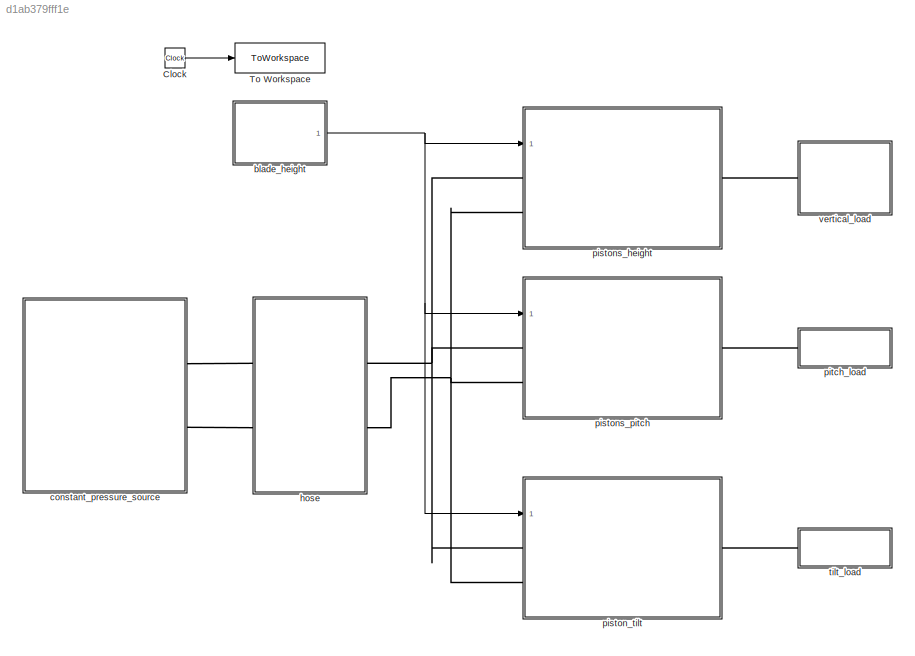
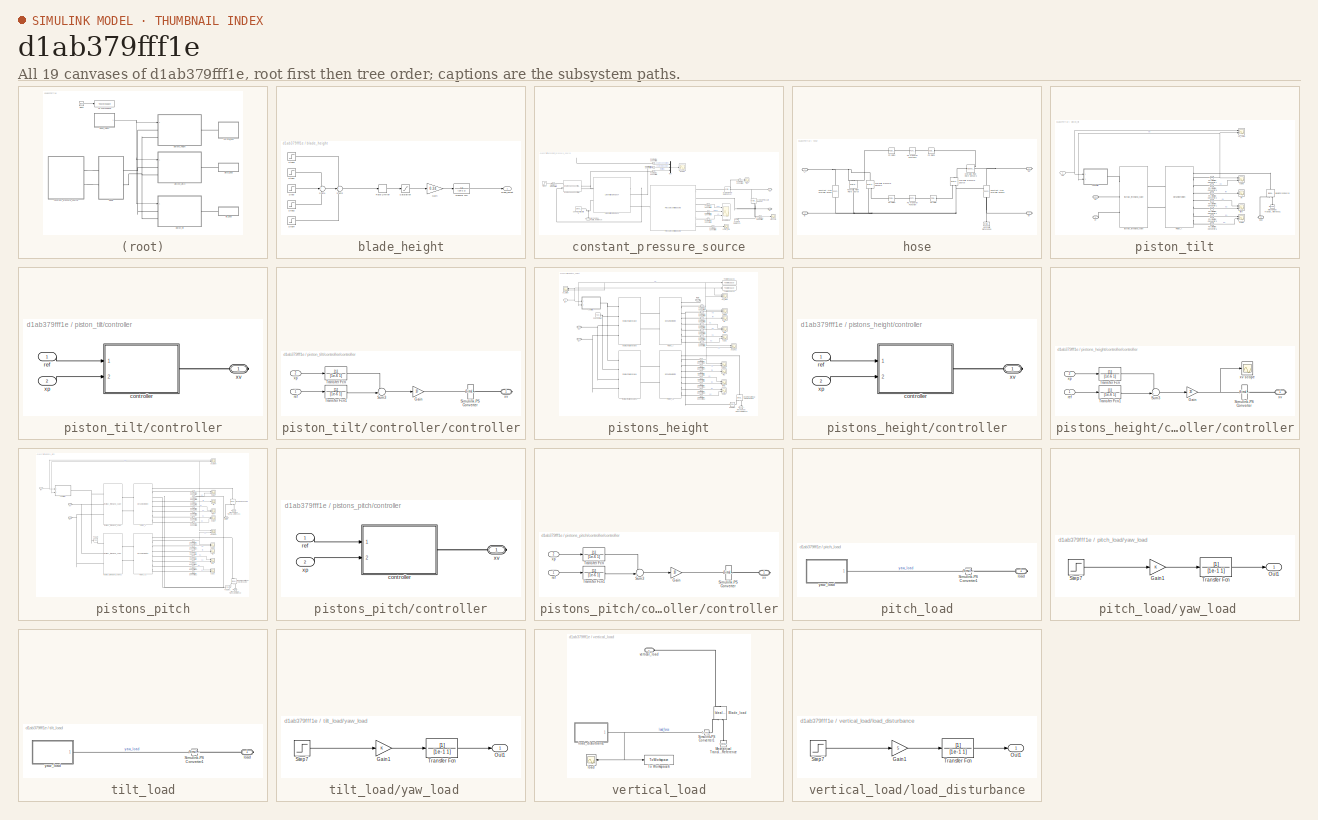
[diagram: thumbnail index - all 19 canvases of the model, root first then tree order]
MODEL slx_d1ab379fff1e
KIND model
CONFIG AbsTol = auto
CONFIG EnableMultiTasking = off
CONFIG FixedStep = auto
CONFIG MaxStep = tsample
CONFIG MinStep = auto
CONFIG RelTol = auto
CONFIG SampleTimeConstraint = Unconstrained
CONFIG Solver = ode23tb
CONFIG SolverName = ode23tb
CONFIG StartTime = 0.0
CONFIG StopTime = simulation_length
BLOCK [Clock] Clock
BLOCK [ToWorkspace] To Workspace
  FixptAsFi = on
  MaxDataPoints = Nsample
  Ports = [1]
  SampleTime = tsample
  VariableName = t
BLOCK [SubSystem] blade_height
  Ports = [0, 1]
  RequestExecContextInheritance = off
BLOCK [Gain] blade_height/Gain
  Gain = 0.24
BLOCK [RateLimiter] blade_height/Rate Limiter
  FallingSlewLimit = -0.2
  RisingSlewLimit = 0.2
  SampleTimeMode = inherited
BLOCK [Saturate] blade_height/Saturation
  LowerLimit = -0.99
  UpperLimit = 0.99
BLOCK [Step] blade_height/Step
  After = 0.5
  SampleTime = 0
  Time = 20
BLOCK [Step] blade_height/Step1
  SampleTime = 0
  Time = 40
BLOCK [Step] blade_height/Step2
  After = 2.5
  SampleTime = 0
  Time = 60
BLOCK [Step] blade_height/Step3
  After = 1.4
  SampleTime = 0
  Time = 80
BLOCK [Step] blade_height/Step4
  After = -0.5
  SampleTime = 0
  Time = 100
BLOCK [Sum] blade_height/Sum1
  Inputs = ++-
  Ports = [3, 1]
BLOCK [Sum] blade_height/Sum2
  Inputs = ++-
  Ports = [3, 1]
BLOCK [TransferFcn] blade_height/Transfer Fcn
  Denominator = [1e-2 1]
BLOCK [Outport] blade_height/blade_height
BLOCK [SubSystem] constant_pressure_source
  Ports = [0, 0, 0, 0, 0, 0, 2]
  RequestExecContextInheritance = off
BLOCK [Scope] constant_pressure_source/Engine
  Floating = off
  NumInputPorts = 1
  Ports = [1]
  ScopeSpecificationString = Simulink.scopes.TimeScopeBlockCfg('CurrentConfiguration', extmgr.ConfigurationSet(extmgr.Configuration('Core','General UI',true),extmgr.Configuration('Core','Source UI',true),extmgr.Configuration('Sources','WiredSimulink',true,'DataLoggingVariableName','ScopeData3','SampleTime','tsample'),extmgr.Configuration('Visuals','Time Domain',true,'SerializedDisplays',{struct('MinYLimReal','-334.27597','Max...<+1616ch>
BLOCK [Reference] constant_pressure_source/Engine Speed Controller  REF=engine_speed_ctrl_lib/Engine Speed
Controller
  Ports = [0, 0, 0, 0, 0, 2, 1]
  SourceBlock = engine_speed_ctrl_lib/Engine Speed\nController
  SourceType = Engine Speed\nController
BLOCK [Reference] constant_pressure_source/Hydraulic Flow Rate Sensor  REF=fl_lib/Hydraulic/Hydraulic Sensors/Hydraulic Flow Rate
Sensor
  Ports = [0, 0, 0, 0, 0, 1, 3]
  SourceBlock = fl_lib/Hydraulic/Hydraulic Sensors/Hydraulic Flow Rate\nSensor
  SourceProductBaseCode = SS
  SourceType = Hydraulic Flow Rate\nSensor
BLOCK [Reference] constant_pressure_source/Hydraulic Pressure Sensor  REF=fl_lib/Hydraulic/Hydraulic Sensors/Hydraulic Pressure
Sensor
  NameLocation = left
  Ports = [0, 0, 0, 0, 0, 1, 2]
  SourceBlock = fl_lib/Hydraulic/Hydraulic Sensors/Hydraulic Pressure\nSensor
  SourceProductBaseCode = SS
  SourceType = Hydraulic Pressure\nSensor
BLOCK [Reference] constant_pressure_source/Hydraulic Reference  REF=fl_lib/Hydraulic/Hydraulic Elements/Hydraulic Reference
  NameLocation = right
  Ports = [0, 0, 0, 0, 0, 1]
  SourceBlock = fl_lib/Hydraulic/Hydraulic Elements/Hydraulic Reference
  SourceProductBaseCode = SS
  SourceType = Hydraulic Reference
BLOCK [Reference] constant_pressure_source/Liebherr Engine D934  REF=Liebherr_Engine_D934_lib/Liebherr Engine D934
  Ports = [0, 0, 0, 0, 0, 2, 5]
  SourceBlock = Liebherr_Engine_D934_lib/Liebherr Engine D934
  SourceType = Liebherr Engine D934
BLOCK [Reference] constant_pressure_source/Mechanical Rotational Reference  REF=fl_lib/Mechanical/Rotational Elements/Mechanical
Rotational Reference
  NameLocation = right
  Ports = [0, 0, 0, 0, 0, 1]
  SourceBlock = fl_lib/Mechanical/Rotational Elements/Mechanical\nRotational Reference
  SourceProductBaseCode = SS
  SourceType = Mechanical\nRotational Reference
BLOCK [Mux] constant_pressure_source/Mux
  DisplayOption = bar
  Inputs = 3
  Ports = [3, 1]
BLOCK [Reference] constant_pressure_source/PS-Simulink Converter  REF=nesl_utility/PS-Simulink
Converter
  Ports = [0, 1, 0, 0, 0, 1]
  SourceBlock = nesl_utility/PS-Simulink\nConverter
  SourceProductBaseCode = SS
  SourceType = PS-Simulink\nConverter
BLOCK [Reference] constant_pressure_source/PS-Simulink Converter1  REF=nesl_utility/PS-Simulink
Converter
  Ports = [0, 1, 0, 0, 0, 1]
  SourceBlock = nesl_utility/PS-Simulink\nConverter
  SourceProductBaseCode = SS
  SourceType = PS-Simulink\nConverter
BLOCK [Reference] constant_pressure_source/PS-Simulink Converter2  REF=nesl_utility/PS-Simulink
Converter
  Ports = [0, 1, 0, 0, 0, 1]
  SourceBlock = nesl_utility/PS-Simulink\nConverter
  SourceProductBaseCode = SS
  SourceType = PS-Simulink\nConverter
BLOCK [Reference] constant_pressure_source/PS-Simulink Converter3  REF=nesl_utility/PS-Simulink
Converter
  Ports = [0, 1, 0, 0, 0, 1]
  SourceBlock = nesl_utility/PS-Simulink\nConverter
  SourceProductBaseCode = SS
  SourceType = PS-Simulink\nConverter
BLOCK [Reference] constant_pressure_source/PS-Simulink Converter4  REF=nesl_utility/PS-Simulink
Converter
  Ports = [0, 1, 0, 0, 0, 1]
  SourceBlock = nesl_utility/PS-Simulink\nConverter
  SourceProductBaseCode = SS
  SourceType = PS-Simulink\nConverter
BLOCK [Reference] constant_pressure_source/PS-Simulink Converter5  REF=nesl_utility/PS-Simulink
Converter
  Ports = [0, 1, 0, 0, 0, 1]
  SourceBlock = nesl_utility/PS-Simulink\nConverter
  SourceProductBaseCode = SS
  SourceType = PS-Simulink\nConverter
BLOCK [Reference] constant_pressure_source/PS-Simulink Converter6  REF=nesl_utility/PS-Simulink
Converter
  Ports = [0, 1, 0, 0, 0, 1]
  SourceBlock = nesl_utility/PS-Simulink\nConverter
  SourceProductBaseCode = SS
  SourceType = PS-Simulink\nConverter
BLOCK [Reference] constant_pressure_source/PS-Simulink Converter7  REF=nesl_utility/PS-Simulink
Converter
  Ports = [0, 1, 0, 0, 0, 1]
  SourceBlock = nesl_utility/PS-Simulink\nConverter
  SourceProductBaseCode = SS
  SourceType = PS-Simulink\nConverter
BLOCK [Reference] constant_pressure_source/PS-Simulink Converter8  REF=nesl_utility/PS-Simulink
Converter
  Ports = [0, 1, 0, 0, 0, 1]
  SourceBlock = nesl_utility/PS-Simulink\nConverter
  SourceProductBaseCode = SS
  SourceType = PS-Simulink\nConverter
BLOCK [Reference] constant_pressure_source/Pressure controlled pump  REF=pressure_controlled_pump_lib/Pressure controlled
pump
  Ports = [0, 0, 0, 0, 0, 1, 6]
  SourceBlock = pressure_controlled_pump_lib/Pressure controlled\npump
  SourceType = Pressure controlled\npump
BLOCK [Reference] constant_pressure_source/Simulink-PS Converter1  REF=nesl_utility/Simulink-PS
Converter
  Ports = [1, 0, 0, 0, 0, 0, 1]
  SourceBlock = nesl_utility/Simulink-PS\nConverter
  SourceProductBaseCode = SS
  SourceType = Simulink-PS\nConverter
BLOCK [Reference] constant_pressure_source/Solver Configuration  REF=nesl_utility/Solver
Configuration
  Ports = [0, 0, 0, 0, 0, 0, 1]
  SourceBlock = nesl_utility/Solver\nConfiguration
  SourceProductBaseCode = SS
  SourceType = Solver\nConfiguration
BLOCK [Step] constant_pressure_source/Step1
  After = 1900
  SampleTime = 0
  Time = 0
BLOCK [Scope] constant_pressure_source/flow
  Floating = off
  NumInputPorts = 1
  Ports = [1]
  ScopeSpecificationString = Simulink.scopes.TimeScopeBlockCfg('CurrentConfiguration', extmgr.ConfigurationSet(extmgr.Configuration('Core','General UI',true),extmgr.Configuration('Core','Source UI',true),extmgr.Configuration('Sources','WiredSimulink',true,'DataLoggingVariableName','ScopeData1'),extmgr.Configuration('Visuals','Time Domain',true,'SerializedDisplays',{struct('MinYLimReal','-102.34934','MaxYLimReal','921.14404','...<+1469ch>
BLOCK [Scope] constant_pressure_source/leak//ptorque
  Floating = off
  NumInputPorts = 3
  Ports = [3]
  ScopeSpecificationString = Simulink.scopes.TimeScopeBlockCfg('CurrentConfiguration', extmgr.ConfigurationSet(extmgr.Configuration('Core','General UI',true),extmgr.Configuration('Core','Source UI',true),extmgr.Configuration('Sources','WiredSimulink',true,'DataLoggingVariableName','ScopeData2'),extmgr.Configuration('Visuals','Time Domain',true,'SerializedDisplays',{struct('MinYLimReal','-528.76595','MaxYLimReal','2393.03448',...<+2749ch>
BLOCK [Scope] constant_pressure_source/pressure
  Floating = off
  NumInputPorts = 1
  Ports = [1]
  ScopeSpecificationString = Simulink.scopes.TimeScopeBlockCfg('CurrentConfiguration', extmgr.ConfigurationSet(extmgr.Configuration('Core','General UI',true),extmgr.Configuration('Core','Source UI',true),extmgr.Configuration('Sources','WiredSimulink',true),extmgr.Configuration('Visuals','Time Domain',true,'SerializedDisplays',{struct('MinYLimReal','-32.54516','MaxYLimReal','292.90647','YLabelReal','','MinYLimMag','0.00000','M...<+1426ch>
BLOCK [PMIOPort] constant_pressure_source/ps
  Side = Right
BLOCK [PMIOPort] constant_pressure_source/pt
  Port = 2
  Side = Right
BLOCK [Scope] constant_pressure_source/pump_flow
  Floating = off
  NumInputPorts = 1
  Ports = [1]
  ScopeSpecificationString = Simulink.scopes.TimeScopeBlockCfg('CurrentConfiguration', extmgr.ConfigurationSet(extmgr.Configuration('Core','General UI',true),extmgr.Configuration('Core','Source UI',true),extmgr.Configuration('Sources','WiredSimulink',true,'DataLoggingVariableName','ScopeData4'),extmgr.Configuration('Visuals','Time Domain',true,'SerializedDisplays',{struct('MinYLimReal','-110.85023','MaxYLimReal','12.31659','Y...<+1467ch>
BLOCK [SubSystem] hose
  Ports = [0, 0, 0, 0, 0, 2, 2]
  RequestExecContextInheritance = off
BLOCK [PMIOPort] hose/A
  Side = Left
BLOCK [PMIOPort] hose/B
  Port = 3
  Side = Left
BLOCK [Reference] hose/Constant Area Hydraulic Orifice  REF=fl_lib/Hydraulic/Hydraulic Elements/Constant Area
Hydraulic Orifice
  NameLocation = left
  Ports = [0, 0, 0, 0, 0, 1, 1]
  SourceBlock = fl_lib/Hydraulic/Hydraulic Elements/Constant Area\nHydraulic Orifice
  SourceProductBaseCode = SS
  SourceType = Constant Area\nHydraulic Orifice
BLOCK [Reference] hose/Constant Area Hydraulic Orifice1  REF=fl_lib/Hydraulic/Hydraulic Elements/Constant Area
Hydraulic Orifice
  NameLocation = left
  Ports = [0, 0, 0, 0, 0, 1, 1]
  SourceBlock = fl_lib/Hydraulic/Hydraulic Elements/Constant Area\nHydraulic Orifice
  SourceProductBaseCode = SS
  SourceType = Constant Area\nHydraulic Orifice
BLOCK [Reference] hose/Hydraulic Flow Rate Sensor3  REF=fl_lib/Hydraulic/Hydraulic Sensors/Hydraulic Flow Rate
Sensor
  Ports = [0, 0, 0, 0, 0, 1, 3]
  SourceBlock = fl_lib/Hydraulic/Hydraulic Sensors/Hydraulic Flow Rate\nSensor
  SourceProductBaseCode = SS
  SourceType = Hydraulic Flow Rate\nSensor
BLOCK [Reference] hose/Hydraulic Flow Rate Source  REF=fl_lib/Hydraulic/Hydraulic Sources/Hydraulic Flow Rate
Source
  NameLocation = left
  Ports = [0, 0, 0, 0, 0, 1, 2]
  SourceBlock = fl_lib/Hydraulic/Hydraulic Sources/Hydraulic Flow Rate\nSource
  SourceProductBaseCode = SS
  SourceType = Hydraulic Flow Rate\nSource
BLOCK [Reference] hose/Hydraulic Pressure Sensor2  REF=fl_lib/Hydraulic/Hydraulic Sensors/Hydraulic Pressure
Sensor
  NameLocation = left
  Ports = [0, 0, 0, 0, 0, 1, 2]
  SourceBlock = fl_lib/Hydraulic/Hydraulic Sensors/Hydraulic Pressure\nSensor
  SourceProductBaseCode = SS
  SourceType = Hydraulic Pressure\nSensor
BLOCK [Reference] hose/Hydraulic Pressure Source  REF=fl_lib/Hydraulic/Hydraulic Sources/Hydraulic Pressure
Source
  NameLocation = right
  Ports = [0, 0, 0, 0, 0, 1, 2]
  SourceBlock = fl_lib/Hydraulic/Hydraulic Sources/Hydraulic Pressure\nSource
  SourceProductBaseCode = SS
  SourceType = Hydraulic Pressure\nSource
BLOCK [Reference] hose/Hydraulic Reference  REF=fl_lib/Hydraulic/Hydraulic Elements/Hydraulic Reference
  NameLocation = right
  Ports = [0, 0, 0, 0, 0, 1]
  SourceBlock = fl_lib/Hydraulic/Hydraulic Elements/Hydraulic Reference
  SourceProductBaseCode = SS
  SourceType = Hydraulic Reference
BLOCK [Reference] hose/PS Gain  REF=fl_lib/Physical Signals/Functions/PS Gain
  Ports = [0, 0, 0, 0, 0, 1, 1]
  SourceBlock = fl_lib/Physical Signals/Functions/PS Gain
  SourceProductBaseCode = SS
  SourceType = PS Gain
BLOCK [Reference] hose/PS Gain1  REF=fl_lib/Physical Signals/Functions/PS Gain
  Ports = [0, 0, 0, 0, 0, 1, 1]
  SourceBlock = fl_lib/Physical Signals/Functions/PS Gain
  SourceProductBaseCode = SS
  SourceType = PS Gain
BLOCK [Reference] hose/PS Gain2  REF=fl_lib/Physical Signals/Functions/PS Gain
  NameLocation = top
  Ports = [0, 0, 0, 0, 0, 1, 1]
  SourceBlock = fl_lib/Physical Signals/Functions/PS Gain
  SourceProductBaseCode = SS
  SourceType = PS Gain
BLOCK [Reference] hose/PS Gain3  REF=fl_lib/Physical Signals/Functions/PS Gain
  NameLocation = top
  Ports = [0, 0, 0, 0, 0, 1, 1]
  SourceBlock = fl_lib/Physical Signals/Functions/PS Gain
  SourceProductBaseCode = SS
  SourceType = PS Gain
BLOCK [Reference] hose/PS Transfer Function  REF=fl_lib/Physical Signals/Linear Operators/PS Transfer Function
  Ports = [0, 0, 0, 0, 0, 1, 1]
  SourceBlock = fl_lib/Physical Signals/Linear Operators/PS Transfer Function
  SourceProductBaseCode = SS
  SourceType = PS Transfer Function
BLOCK [Reference] hose/PS Transfer Function1  REF=fl_lib/Physical Signals/Linear Operators/PS Transfer Function
  NameLocation = top
  Ports = [0, 0, 0, 0, 0, 1, 1]
  SourceBlock = fl_lib/Physical Signals/Linear Operators/PS Transfer Function
  SourceProductBaseCode = SS
  SourceType = PS Transfer Function
BLOCK [PMIOPort] hose/ps
  NameLocation = top
  Port = 2
  Side = Right
BLOCK [PMIOPort] hose/pt
  Port = 4
  Side = Right
BLOCK [SubSystem] piston_tilt
  Ports = [1, 0, 0, 0, 0, 2, 1]
  RequestExecContextInheritance = off
BLOCK [Reference] piston_tilt/Ideal Force Source  REF=fl_lib/Mechanical/Mechanical Sources/Ideal Force Source
  NameLocation = right
  Ports = [0, 0, 0, 0, 0, 1, 2]
  SourceBlock = fl_lib/Mechanical/Mechanical Sources/Ideal Force Source
  SourceProductBaseCode = SS
  SourceType = Ideal Force Source
BLOCK [Reference] piston_tilt/Mechanical Translational Reference1  REF=fl_lib/Mechanical/Translational
Elements/Mechanical
Translational
Reference
  NameLocation = right
  Ports = [0, 0, 0, 0, 0, 1]
  SourceBlock = fl_lib/Mechanical/Translational\nElements/Mechanical\nTranslational\nReference
  SourceProductBaseCode = SS
  SourceType = Mechanical\nTranslational\nReference
BLOCK [Reference] piston_tilt/PS-Simulink Converter1  REF=nesl_utility/PS-Simulink
Converter
  Ports = [0, 1, 0, 0, 0, 1]
  SourceBlock = nesl_utility/PS-Simulink\nConverter
  SourceProductBaseCode = SS
  SourceType = PS-Simulink\nConverter
BLOCK [Reference] piston_tilt/PS-Simulink Converter2  REF=nesl_utility/PS-Simulink
Converter
  Ports = [0, 1, 0, 0, 0, 1]
  SourceBlock = nesl_utility/PS-Simulink\nConverter
  SourceProductBaseCode = SS
  SourceType = PS-Simulink\nConverter
BLOCK [Reference] piston_tilt/PS-Simulink Converter3  REF=nesl_utility/PS-Simulink
Converter
  Ports = [0, 1, 0, 0, 0, 1]
  SourceBlock = nesl_utility/PS-Simulink\nConverter
  SourceProductBaseCode = SS
  SourceType = PS-Simulink\nConverter
BLOCK [Reference] piston_tilt/PS-Simulink Converter4  REF=nesl_utility/PS-Simulink
Converter
  Ports = [0, 1, 0, 0, 0, 1]
  SourceBlock = nesl_utility/PS-Simulink\nConverter
  SourceProductBaseCode = SS
  SourceType = PS-Simulink\nConverter
BLOCK [Reference] piston_tilt/PS-Simulink Converter5  REF=nesl_utility/PS-Simulink
Converter
  Ports = [0, 1, 0, 0, 0, 1]
  SourceBlock = nesl_utility/PS-Simulink\nConverter
  SourceProductBaseCode = SS
  SourceType = PS-Simulink\nConverter
BLOCK [Reference] piston_tilt/PS-Simulink Converter7  REF=nesl_utility/PS-Simulink
Converter
  Ports = [0, 1, 0, 0, 0, 1]
  SourceBlock = nesl_utility/PS-Simulink\nConverter
  SourceProductBaseCode = SS
  SourceType = PS-Simulink\nConverter
BLOCK [Reference] piston_tilt/PS-Simulink Converter9  REF=nesl_utility/PS-Simulink
Converter
  Ports = [0, 1, 0, 0, 0, 1]
  SourceBlock = nesl_utility/PS-Simulink\nConverter
  SourceProductBaseCode = SS
  SourceType = PS-Simulink\nConverter
BLOCK [Reference] piston_tilt/Piston_A  REF=bichamber_piston_lib/bichamber piston
  Ports = [0, 0, 0, 0, 0, 2, 8]
  SourceBlock = bichamber_piston_lib/bichamber piston
  SourceType = bichamber piston
BLOCK [SubSystem] piston_tilt/controller
  Ports = [2, 0, 0, 0, 0, 0, 1]
  RequestExecContextInheritance = off
BLOCK [SubSystem] piston_tilt/controller/controller
  Ports = [2, 0, 0, 0, 0, 0, 1]
  RequestExecContextInheritance = off
BLOCK [Gain] piston_tilt/controller/controller/Gain
  Gain = 10
BLOCK [Reference] piston_tilt/controller/controller/Simulink-PS Converter  REF=nesl_utility/Simulink-PS
Converter
  Ports = [1, 0, 0, 0, 0, 0, 1]
  SourceBlock = nesl_utility/Simulink-PS\nConverter
  SourceProductBaseCode = SS
  SourceType = Simulink-PS\nConverter
BLOCK [Sum] piston_tilt/controller/controller/Sum3
  Inputs = -+|
  Ports = [2, 1]
BLOCK [TransferFcn] piston_tilt/controller/controller/Transfer Fcn
  Denominator = [1e-6 1]
BLOCK [TransferFcn] piston_tilt/controller/controller/Transfer Fcn1
  Denominator = [1e-6 1]
BLOCK [Inport] piston_tilt/controller/controller/ref
BLOCK [Inport] piston_tilt/controller/controller/xp
  Port = 2
BLOCK [PMIOPort] piston_tilt/controller/controller/xv
  Side = Right
BLOCK [Inport] piston_tilt/controller/ref
BLOCK [Inport] piston_tilt/controller/xp
  Port = 2
BLOCK [PMIOPort] piston_tilt/controller/xv
  Side = Right
BLOCK [Scope] piston_tilt/flow
  Floating = off
  NumInputPorts = 2
  Ports = [2]
  ScopeSpecificationString = Simulink.scopes.TimeScopeBlockCfg('CurrentConfiguration', extmgr.ConfigurationSet(extmgr.Configuration('Core','General UI',true),extmgr.Configuration('Core','Source UI',true),extmgr.Configuration('Sources','WiredSimulink',true,'DataLoggingVariableName','ScopeData1'),extmgr.Configuration('Visuals','Time Domain',true,'SerializedDisplays',{struct('MinYLimReal','-390.093','MaxYLimReal','390.1347','YLa...<+1617ch>  <repeated x4 — deduplicated; at blocks: flow, flow1>
BLOCK [Scope] piston_tilt/fm
  Floating = off
  NumInputPorts = 1
  Ports = [1]
  ScopeSpecificationString = Simulink.scopes.TimeScopeBlockCfg('CurrentConfiguration', extmgr.ConfigurationSet(extmgr.Configuration('Core','General UI',true),extmgr.Configuration('Core','Source UI',true),extmgr.Configuration('Sources','WiredSimulink',true,'DataLoggingVariableName','ScopeData2'),extmgr.Configuration('Visuals','Time Domain',true,'SerializedDisplays',{struct('MinYLimReal','-12251.54126','MaxYLimReal','12272.9352...<+1637ch>  <repeated x4 — deduplicated; at blocks: fm, fm1>
BLOCK [Reference] piston_tilt/fourway_threeland_valve  REF=fourway_threeland_valve_lib/fourway_threeland_valve
  Ports = [0, 0, 0, 0, 0, 3, 2]
  SourceBlock = fourway_threeland_valve_lib/fourway_threeland_valve
  SourceType = fourway_threeland_valve
BLOCK [PMIOPort] piston_tilt/load
  NameLocation = top
  Port = 3
  Side = Right
BLOCK [Scope] piston_tilt/p1//p2
  Floating = off
  NumInputPorts = 2
  Ports = [2]
  ScopeSpecificationString = Simulink.scopes.TimeScopeBlockCfg('CurrentConfiguration', extmgr.ConfigurationSet(extmgr.Configuration('Core','General UI',true),extmgr.Configuration('Core','Source UI',true),extmgr.Configuration('Sources','WiredSimulink',true,'DataLoggingVariableName','ScopeData4'),extmgr.Configuration('Visuals','Time Domain',true,'SerializedDisplays',{struct('MinYLimReal','37.82362','MaxYLimReal','216.97396','YL...<+1624ch>
BLOCK [PMIOPort] piston_tilt/ps
  Side = Left
BLOCK [PMIOPort] piston_tilt/pt
  Port = 2
  Side = Left
BLOCK [Inport] piston_tilt/ref
BLOCK [Scope] piston_tilt/xp//vp
  Floating = off
  NameLocation = top
  NumInputPorts = 2
  Ports = [2]
  ScopeSpecificationString = Simulink.scopes.TimeScopeBlockCfg('CurrentConfiguration', extmgr.ConfigurationSet(extmgr.Configuration('Core','General UI',true),extmgr.Configuration('Core','Source UI',true),extmgr.Configuration('Sources','WiredSimulink',true,'DataLoggingVariableName','ScopeData1'),extmgr.Configuration('Visuals','Time Domain',true,'SerializedDisplays',{struct('MinYLimReal','-0.00439','MaxYLimReal','0.00049','YLab...<+2178ch>
BLOCK [Scope] piston_tilt/xp_re//xp
  Floating = off
  NumInputPorts = 2
  Ports = [2]
  ScopeSpecificationString = Simulink.scopes.TimeScopeBlockCfg('CurrentConfiguration', extmgr.ConfigurationSet(extmgr.Configuration('Core','General UI',true),extmgr.Configuration('Core','Source UI',true),extmgr.Configuration('Sources','WiredSimulink',true,'DataLoggingVariableName','ScopeData7'),extmgr.Configuration('Visuals','Time Domain',true,'SerializedDisplays',{struct('MinYLimReal','-0.30937','MaxYLimReal','0.30937','YLab...<+1662ch>
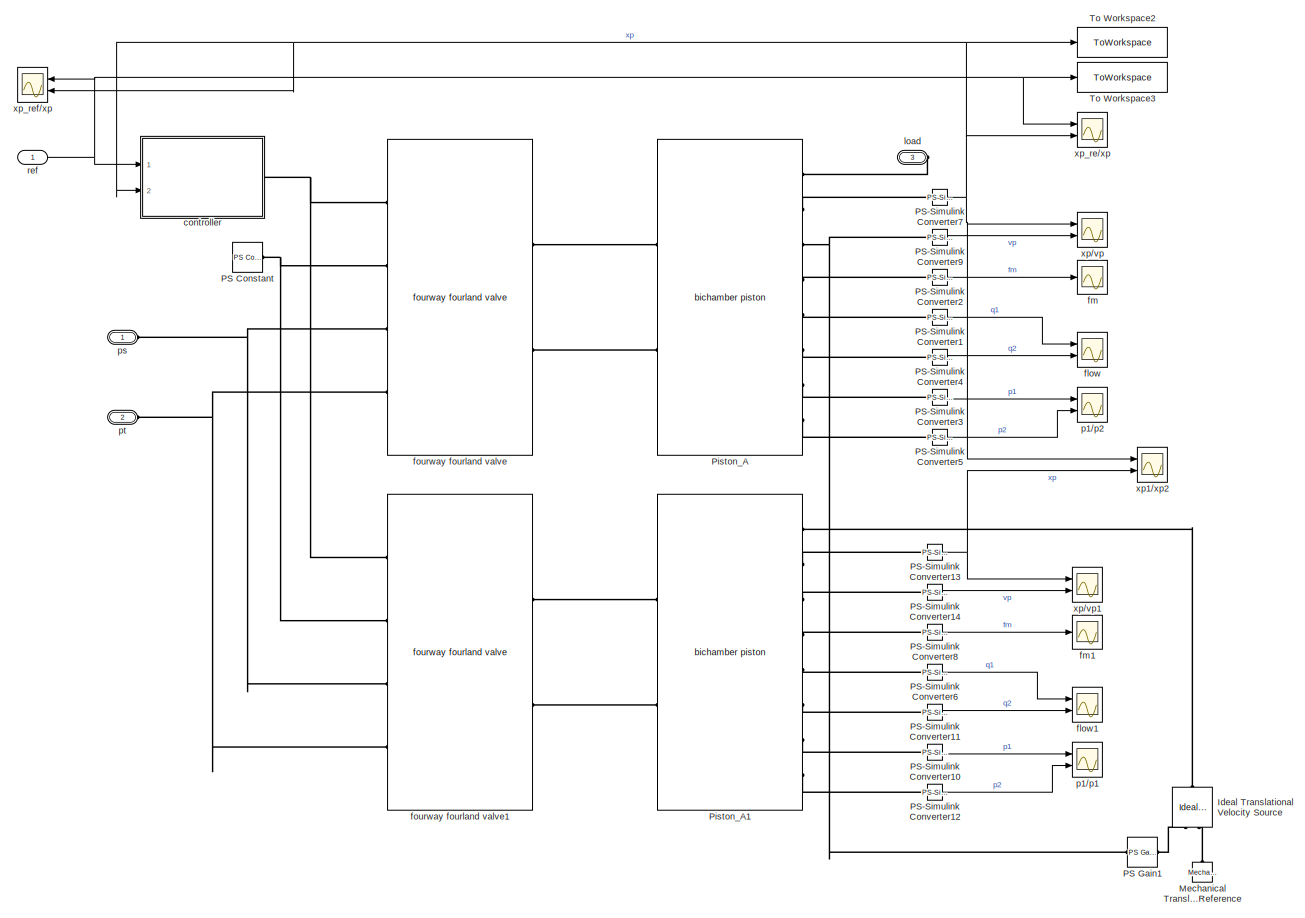
[diagram: pistons_height - part 1/1, most of the canvas]
BLOCK [SubSystem] pistons_height
  Ports = [1, 0, 0, 0, 0, 2, 1]
  RequestExecContextInheritance = off
BLOCK [Reference] pistons_height/Ideal Translational Velocity Source  REF=fl_lib/Mechanical/Mechanical Sources/Ideal Translational
Velocity Source
  NameLocation = right
  Ports = [0, 0, 0, 0, 0, 1, 2]
  SourceBlock = fl_lib/Mechanical/Mechanical Sources/Ideal Translational\nVelocity Source
  SourceProductBaseCode = SS
  SourceType = Ideal Translational\nVelocity Source
BLOCK [Reference] pistons_height/Mechanical Translational Reference  REF=fl_lib/Mechanical/Translational
Elements/Mechanical
Translational
Reference
  NameLocation = right
  Ports = [0, 0, 0, 0, 0, 1]
  SourceBlock = fl_lib/Mechanical/Translational\nElements/Mechanical\nTranslational\nReference
  SourceProductBaseCode = SS
  SourceType = Mechanical\nTranslational\nReference
BLOCK [Reference] pistons_height/PS Constant  REF=fl_lib/Physical Signals/Sources/PS Constant
  Ports = [0, 0, 0, 0, 0, 0, 1]
  SourceBlock = fl_lib/Physical Signals/Sources/PS Constant
  SourceProductBaseCode = SS
  SourceType = PS Constant
BLOCK [Reference] pistons_height/PS Gain1  REF=fl_lib/Physical Signals/Functions/PS Gain
  Ports = [0, 0, 0, 0, 0, 1, 1]
  SourceBlock = fl_lib/Physical Signals/Functions/PS Gain
  SourceProductBaseCode = SS
  SourceType = PS Gain
BLOCK [Reference] pistons_height/PS-Simulink Converter1  REF=nesl_utility/PS-Simulink
Converter
  Ports = [0, 1, 0, 0, 0, 1]
  SourceBlock = nesl_utility/PS-Simulink\nConverter
  SourceProductBaseCode = SS
  SourceType = PS-Simulink\nConverter
BLOCK [Reference] pistons_height/PS-Simulink Converter10  REF=nesl_utility/PS-Simulink
Converter
  Ports = [0, 1, 0, 0, 0, 1]
  SourceBlock = nesl_utility/PS-Simulink\nConverter
  SourceProductBaseCode = SS
  SourceType = PS-Simulink\nConverter
BLOCK [Reference] pistons_height/PS-Simulink Converter11  REF=nesl_utility/PS-Simulink
Converter
  Ports = [0, 1, 0, 0, 0, 1]
  SourceBlock = nesl_utility/PS-Simulink\nConverter
  SourceProductBaseCode = SS
  SourceType = PS-Simulink\nConverter
BLOCK [Reference] pistons_height/PS-Simulink Converter12  REF=nesl_utility/PS-Simulink
Converter
  Ports = [0, 1, 0, 0, 0, 1]
  SourceBlock = nesl_utility/PS-Simulink\nConverter
  SourceProductBaseCode = SS
  SourceType = PS-Simulink\nConverter
BLOCK [Reference] pistons_height/PS-Simulink Converter13  REF=nesl_utility/PS-Simulink
Converter
  Ports = [0, 1, 0, 0, 0, 1]
  SourceBlock = nesl_utility/PS-Simulink\nConverter
  SourceProductBaseCode = SS
  SourceType = PS-Simulink\nConverter
BLOCK [Reference] pistons_height/PS-Simulink Converter14  REF=nesl_utility/PS-Simulink
Converter
  Ports = [0, 1, 0, 0, 0, 1]
  SourceBlock = nesl_utility/PS-Simulink\nConverter
  SourceProductBaseCode = SS
  SourceType = PS-Simulink\nConverter
BLOCK [Reference] pistons_height/PS-Simulink Converter2  REF=nesl_utility/PS-Simulink
Converter
  Ports = [0, 1, 0, 0, 0, 1]
  SourceBlock = nesl_utility/PS-Simulink\nConverter
  SourceProductBaseCode = SS
  SourceType = PS-Simulink\nConverter
BLOCK [Reference] pistons_height/PS-Simulink Converter3  REF=nesl_utility/PS-Simulink
Converter
  Ports = [0, 1, 0, 0, 0, 1]
  SourceBlock = nesl_utility/PS-Simulink\nConverter
  SourceProductBaseCode = SS
  SourceType = PS-Simulink\nConverter
BLOCK [Reference] pistons_height/PS-Simulink Converter4  REF=nesl_utility/PS-Simulink
Converter
  Ports = [0, 1, 0, 0, 0, 1]
  SourceBlock = nesl_utility/PS-Simulink\nConverter
  SourceProductBaseCode = SS
  SourceType = PS-Simulink\nConverter
BLOCK [Reference] pistons_height/PS-Simulink Converter5  REF=nesl_utility/PS-Simulink
Converter
  Ports = [0, 1, 0, 0, 0, 1]
  SourceBlock = nesl_utility/PS-Simulink\nConverter
  SourceProductBaseCode = SS
  SourceType = PS-Simulink\nConverter
BLOCK [Reference] pistons_height/PS-Simulink Converter6  REF=nesl_utility/PS-Simulink
Converter
  Ports = [0, 1, 0, 0, 0, 1]
  SourceBlock = nesl_utility/PS-Simulink\nConverter
  SourceProductBaseCode = SS
  SourceType = PS-Simulink\nConverter
BLOCK [Reference] pistons_height/PS-Simulink Converter7  REF=nesl_utility/PS-Simulink
Converter
  Ports = [0, 1, 0, 0, 0, 1]
  SourceBlock = nesl_utility/PS-Simulink\nConverter
  SourceProductBaseCode = SS
  SourceType = PS-Simulink\nConverter
BLOCK [Reference] pistons_height/PS-Simulink Converter8  REF=nesl_utility/PS-Simulink
Converter
  Ports = [0, 1, 0, 0, 0, 1]
  SourceBlock = nesl_utility/PS-Simulink\nConverter
  SourceProductBaseCode = SS
  SourceType = PS-Simulink\nConverter
BLOCK [Reference] pistons_height/PS-Simulink Converter9  REF=nesl_utility/PS-Simulink
Converter
  Ports = [0, 1, 0, 0, 0, 1]
  SourceBlock = nesl_utility/PS-Simulink\nConverter
  SourceProductBaseCode = SS
  SourceType = PS-Simulink\nConverter
BLOCK [Reference] pistons_height/Piston_A  REF=bichamber_piston_lib/bichamber piston
  Ports = [0, 0, 0, 0, 0, 2, 8]
  SourceBlock = bichamber_piston_lib/bichamber piston
  SourceType = bichamber piston
BLOCK [Reference] pistons_height/Piston_A1  REF=bichamber_piston_lib/bichamber piston
  Ports = [0, 0, 0, 0, 0, 2, 8]
  SourceBlock = bichamber_piston_lib/bichamber piston
  SourceType = bichamber piston
BLOCK [ToWorkspace] pistons_height/To Workspace2
  FixptAsFi = on
  MaxDataPoints = Nsample
  Ports = [1]
  SampleTime = tsample
  VariableName = sim_pistonA_xp
BLOCK [ToWorkspace] pistons_height/To Workspace3
  FixptAsFi = on
  MaxDataPoints = Nsample
  Ports = [1]
  SampleTime = tsample
  VariableName = sim_pistonA_xp_ref
BLOCK [SubSystem] pistons_height/controller
  Ports = [2, 0, 0, 0, 0, 0, 1]
  RequestExecContextInheritance = off
BLOCK [SubSystem] pistons_height/controller/controller
  Ports = [2, 0, 0, 0, 0, 0, 1]
  RequestExecContextInheritance = off
BLOCK [Gain] pistons_height/controller/controller/Gain
  Gain = 20
BLOCK [Reference] pistons_height/controller/controller/Simulink-PS Converter  REF=nesl_utility/Simulink-PS
Converter
  Ports = [1, 0, 0, 0, 0, 0, 1]
  SourceBlock = nesl_utility/Simulink-PS\nConverter
  SourceProductBaseCode = SS
  SourceType = Simulink-PS\nConverter
BLOCK [Sum] pistons_height/controller/controller/Sum3
  Inputs = -+|
  Ports = [2, 1]
BLOCK [TransferFcn] pistons_height/controller/controller/Transfer Fcn
  Denominator = [1e-6 1]
BLOCK [TransferFcn] pistons_height/controller/controller/Transfer Fcn1
  Denominator = [1e-6 1]
BLOCK [Inport] pistons_height/controller/controller/ref
BLOCK [Inport] pistons_height/controller/controller/xp
  Port = 2
BLOCK [PMIOPort] pistons_height/controller/controller/xv
  Side = Right
BLOCK [Scope] pistons_height/controller/controller/xv scope
  Floating = off
  NameLocation = top
  NumInputPorts = 1
  Ports = [1]
  ScopeSpecificationString = Simulink.scopes.TimeScopeBlockCfg('CurrentConfiguration', extmgr.ConfigurationSet(extmgr.Configuration('Core','General UI',true),extmgr.Configuration('Core','Source UI',true),extmgr.Configuration('Sources','WiredSimulink',true,'DataLoggingVariableName','ScopeData1'),extmgr.Configuration('Visuals','Time Domain',true,'SerializedDisplays',{struct('MinYLimReal','-0.62833','MaxYLimReal','2.93872','YLab...<+1610ch>
BLOCK [Inport] pistons_height/controller/ref
BLOCK [Inport] pistons_height/controller/xp
  Port = 2
BLOCK [PMIOPort] pistons_height/controller/xv
  Side = Right
BLOCK [Scope] pistons_height/flow
  Floating = off
  NumInputPorts = 2
  Ports = [2]
  ScopeSpecificationString = Simulink.scopes.TimeScopeBlockCfg('CurrentConfiguration', extmgr.ConfigurationSet(extmgr.Configuration('Core','General UI',true),extmgr.Configuration('Core','Source UI',true),extmgr.Configuration('Sources','WiredSimulink',true,'DataLoggingVariableName','ScopeData1'),extmgr.Configuration('Visuals','Time Domain',true,'SerializedDisplays',{struct('MinYLimReal','-1875.7062','MaxYLimReal','259.78126','...<+1653ch>
BLOCK [Scope] pistons_height/flow1
  Floating = off
  NumInputPorts = 2
  Ports = [2]
BLOCK [Scope] pistons_height/fm
  Floating = off
  NumInputPorts = 1
  Ports = [1]
  ScopeSpecificationString = Simulink.scopes.TimeScopeBlockCfg('CurrentConfiguration', extmgr.ConfigurationSet(extmgr.Configuration('Core','General UI',true),extmgr.Configuration('Core','Source UI',true),extmgr.Configuration('Sources','WiredSimulink',true,'DataLoggingVariableName','ScopeData2'),extmgr.Configuration('Visuals','Time Domain',true,'SerializedDisplays',{struct('MinYLimReal','-108538.69642','MaxYLimReal','135660.06...<+1645ch>
BLOCK [Scope] pistons_height/fm1
  Floating = off
  NumInputPorts = 1
  Ports = [1]
BLOCK [Reference] pistons_height/fourway fourland valve  REF=fourway_fourland_valve_lib/fourway fourland
valve
  Ports = [0, 0, 0, 0, 0, 4, 2]
  SourceBlock = fourway_fourland_valve_lib/fourway fourland\nvalve
  SourceType = fourway fourland\nvalve
BLOCK [Reference] pistons_height/fourway fourland valve1  REF=fourway_fourland_valve_lib/fourway fourland
valve
  Ports = [0, 0, 0, 0, 0, 4, 2]
  SourceBlock = fourway_fourland_valve_lib/fourway fourland\nvalve
  SourceType = fourway fourland\nvalve
BLOCK [PMIOPort] pistons_height/load
  Port = 3
  Side = Right
BLOCK [Scope] pistons_height/p1//p1
  Floating = off
  NumInputPorts = 2
  Ports = [2]
  ScopeSpecificationString = Simulink.scopes.TimeScopeBlockCfg('CurrentConfiguration', extmgr.ConfigurationSet(extmgr.Configuration('Core','General UI',true),extmgr.Configuration('Core','Source UI',true),extmgr.Configuration('Sources','WiredSimulink',true,'DataLoggingVariableName','ScopeData3'),extmgr.Configuration('Visuals','Time Domain',true,'SerializedDisplays',{struct('MinYLimReal','-177.8568','MaxYLimReal','329.01605','Y...<+1623ch>
BLOCK [Scope] pistons_height/p1//p2
  Floating = off
  NumInputPorts = 2
  Ports = [2]
  ScopeSpecificationString = Simulink.scopes.TimeScopeBlockCfg('CurrentConfiguration', extmgr.ConfigurationSet(extmgr.Configuration('Core','General UI',true),extmgr.Configuration('Core','Source UI',true),extmgr.Configuration('Sources','WiredSimulink',true,'DataLoggingVariableName','ScopeData4'),extmgr.Configuration('Visuals','Time Domain',true,'SerializedDisplays',{struct('MinYLimReal','-107.32782','MaxYLimReal','290.84247','...<+1761ch>
BLOCK [PMIOPort] pistons_height/ps
  Side = Left
BLOCK [PMIOPort] pistons_height/pt
  Port = 2
  Side = Left
BLOCK [Inport] pistons_height/ref
BLOCK [Scope] pistons_height/xp//vp
  Floating = off
  NameLocation = top
  NumInputPorts = 2
  Ports = [2]
  ScopeSpecificationString = Simulink.scopes.TimeScopeBlockCfg('CurrentConfiguration', extmgr.ConfigurationSet(extmgr.Configuration('Core','General UI',true),extmgr.Configuration('Core','Source UI',true),extmgr.Configuration('Sources','WiredSimulink',true,'DataLoggingVariableName','ScopeData1'),extmgr.Configuration('Visuals','Time Domain',true,'SerializedDisplays',{struct('MinYLimReal','-0.30631','MaxYLimReal','0.30627','YLab...<+2208ch>
BLOCK [Scope] pistons_height/xp//vp1
  Floating = off
  NameLocation = top
  NumInputPorts = 2
  Ports = [2]
  ScopeSpecificationString = Simulink.scopes.TimeScopeBlockCfg('CurrentConfiguration', extmgr.ConfigurationSet(extmgr.Configuration('Core','General UI',true),extmgr.Configuration('Core','Source UI',true),extmgr.Configuration('Sources','WiredSimulink',true,'DataLoggingVariableName','ScopeData4'),extmgr.Configuration('Visuals','Time Domain',true,'SerializedDisplays',{struct('MinYLimReal','-0.03203','MaxYLimReal','0.27404','YLab...<+2182ch>
BLOCK [Scope] pistons_height/xp1//xp2
  Floating = off
  NameLocation = top
  NumInputPorts = 2
  Ports = [2]
  ScopeSpecificationString = Simulink.scopes.TimeScopeBlockCfg('CurrentConfiguration', extmgr.ConfigurationSet(extmgr.Configuration('Core','General UI',true),extmgr.Configuration('Core','Source UI',true),extmgr.Configuration('Sources','WiredSimulink',true,'DataLoggingVariableName','ScopeData5'),extmgr.Configuration('Visuals','Time Domain',true,'SerializedDisplays',{struct('MinYLimReal','-0.30937','MaxYLimReal','0.30937','YLab...<+1639ch>
BLOCK [Scope] pistons_height/xp_re//xp
  Floating = off
  NumInputPorts = 2
  Ports = [2]
  ScopeSpecificationString = Simulink.scopes.TimeScopeBlockCfg('CurrentConfiguration', extmgr.ConfigurationSet(extmgr.Configuration('Core','General UI',true),extmgr.Configuration('Core','Source UI',true),extmgr.Configuration('Sources','WiredSimulink',true,'DataLoggingVariableName','ScopeData7'),extmgr.Configuration('Visuals','Time Domain',true,'SerializedDisplays',{struct('MinYLimReal','-0.3465','MaxYLimReal','0.3465','YLabel...<+1742ch>
BLOCK [Scope] pistons_height/xp_ref//xp
  Floating = off
  NumInputPorts = 2
  Ports = [2]
  ScopeSpecificationString = Simulink.scopes.TimeScopeBlockCfg('CurrentConfiguration', extmgr.ConfigurationSet(extmgr.Configuration('Core','General UI',true),extmgr.Configuration('Core','Source UI',true),extmgr.Configuration('Sources','WiredSimulink',true,'DataLoggingVariableName','ScopeData1','SampleTime','tsample'),extmgr.Configuration('Visuals','Time Domain',true,'SerializedDisplays',{struct('MinYLimReal','-1.2264','MaxYLi...<+1512ch>
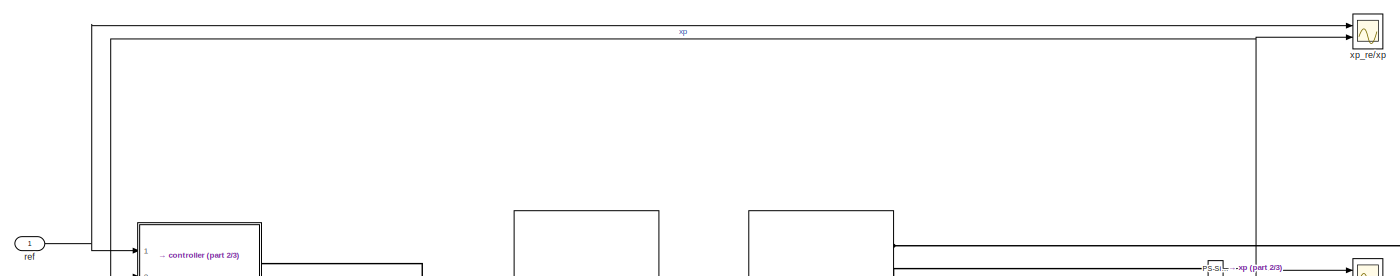
[diagram: pistons_pitch - part 1/3, full width, top band]
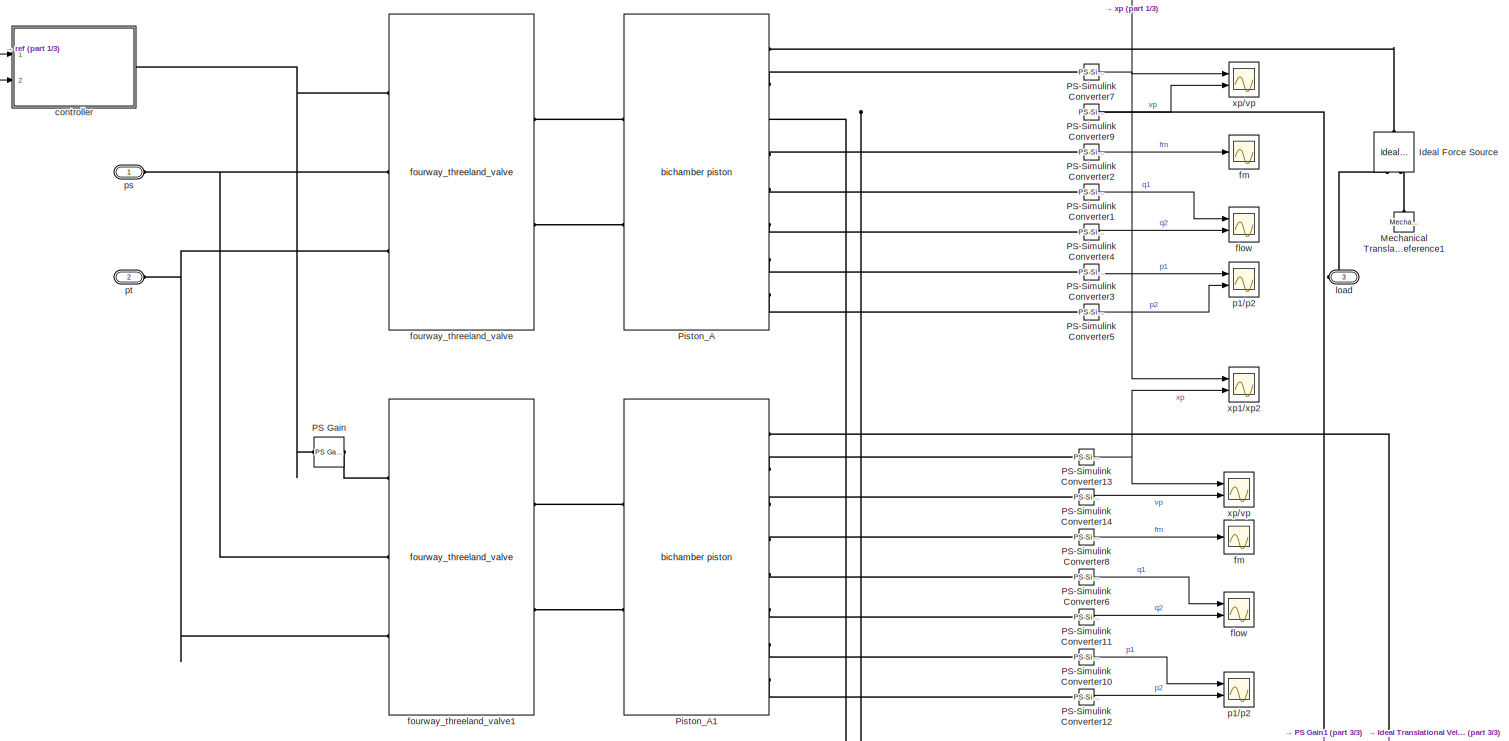
[diagram: pistons_pitch - part 2/3, full width, middle band]
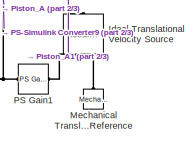
[diagram: pistons_pitch - part 3/3, bottom right region]
BLOCK [SubSystem] pistons_pitch
  Ports = [1, 0, 0, 0, 0, 2, 1]
  RequestExecContextInheritance = off
BLOCK [Reference] pistons_pitch/Ideal Force Source  REF=fl_lib/Mechanical/Mechanical Sources/Ideal Force Source
  NameLocation = right
  Ports = [0, 0, 0, 0, 0, 1, 2]
  SourceBlock = fl_lib/Mechanical/Mechanical Sources/Ideal Force Source
  SourceProductBaseCode = SS
  SourceType = Ideal Force Source
BLOCK [Reference] pistons_pitch/Ideal Translational Velocity Source  REF=fl_lib/Mechanical/Mechanical Sources/Ideal Translational
Velocity Source
  NameLocation = right
  Ports = [0, 0, 0, 0, 0, 1, 2]
  SourceBlock = fl_lib/Mechanical/Mechanical Sources/Ideal Translational\nVelocity Source
  SourceProductBaseCode = SS
  SourceType = Ideal Translational\nVelocity Source
BLOCK [Reference] pistons_pitch/Mechanical Translational Reference  REF=fl_lib/Mechanical/Translational
Elements/Mechanical
Translational
Reference
  NameLocation = right
  Ports = [0, 0, 0, 0, 0, 1]
  SourceBlock = fl_lib/Mechanical/Translational\nElements/Mechanical\nTranslational\nReference
  SourceProductBaseCode = SS
  SourceType = Mechanical\nTranslational\nReference
BLOCK [Reference] pistons_pitch/Mechanical Translational Reference1  REF=fl_lib/Mechanical/Translational
Elements/Mechanical
Translational
Reference
  NameLocation = right
  Ports = [0, 0, 0, 0, 0, 1]
  SourceBlock = fl_lib/Mechanical/Translational\nElements/Mechanical\nTranslational\nReference
  SourceProductBaseCode = SS
  SourceType = Mechanical\nTranslational\nReference
BLOCK [Reference] pistons_pitch/PS Gain  REF=fl_lib/Physical Signals/Functions/PS Gain
  Ports = [0, 0, 0, 0, 0, 1, 1]
  SourceBlock = fl_lib/Physical Signals/Functions/PS Gain
  SourceProductBaseCode = SS
  SourceType = PS Gain
BLOCK [Reference] pistons_pitch/PS Gain1  REF=fl_lib/Physical Signals/Functions/PS Gain
  Ports = [0, 0, 0, 0, 0, 1, 1]
  SourceBlock = fl_lib/Physical Signals/Functions/PS Gain
  SourceProductBaseCode = SS
  SourceType = PS Gain
BLOCK [Reference] pistons_pitch/PS-Simulink Converter1  REF=nesl_utility/PS-Simulink
Converter
  Ports = [0, 1, 0, 0, 0, 1]
  SourceBlock = nesl_utility/PS-Simulink\nConverter
  SourceProductBaseCode = SS
  SourceType = PS-Simulink\nConverter
BLOCK [Reference] pistons_pitch/PS-Simulink Converter10  REF=nesl_utility/PS-Simulink
Converter
  Ports = [0, 1, 0, 0, 0, 1]
  SourceBlock = nesl_utility/PS-Simulink\nConverter
  SourceProductBaseCode = SS
  SourceType = PS-Simulink\nConverter
BLOCK [Reference] pistons_pitch/PS-Simulink Converter11  REF=nesl_utility/PS-Simulink
Converter
  Ports = [0, 1, 0, 0, 0, 1]
  SourceBlock = nesl_utility/PS-Simulink\nConverter
  SourceProductBaseCode = SS
  SourceType = PS-Simulink\nConverter
BLOCK [Reference] pistons_pitch/PS-Simulink Converter12  REF=nesl_utility/PS-Simulink
Converter
  Ports = [0, 1, 0, 0, 0, 1]
  SourceBlock = nesl_utility/PS-Simulink\nConverter
  SourceProductBaseCode = SS
  SourceType = PS-Simulink\nConverter
BLOCK [Reference] pistons_pitch/PS-Simulink Converter13  REF=nesl_utility/PS-Simulink
Converter
  Ports = [0, 1, 0, 0, 0, 1]
  SourceBlock = nesl_utility/PS-Simulink\nConverter
  SourceProductBaseCode = SS
  SourceType = PS-Simulink\nConverter
BLOCK [Reference] pistons_pitch/PS-Simulink Converter14  REF=nesl_utility/PS-Simulink
Converter
  Ports = [0, 1, 0, 0, 0, 1]
  SourceBlock = nesl_utility/PS-Simulink\nConverter
  SourceProductBaseCode = SS
  SourceType = PS-Simulink\nConverter
BLOCK [Reference] pistons_pitch/PS-Simulink Converter2  REF=nesl_utility/PS-Simulink
Converter
  Ports = [0, 1, 0, 0, 0, 1]
  SourceBlock = nesl_utility/PS-Simulink\nConverter
  SourceProductBaseCode = SS
  SourceType = PS-Simulink\nConverter
BLOCK [Reference] pistons_pitch/PS-Simulink Converter3  REF=nesl_utility/PS-Simulink
Converter
  Ports = [0, 1, 0, 0, 0, 1]
  SourceBlock = nesl_utility/PS-Simulink\nConverter
  SourceProductBaseCode = SS
  SourceType = PS-Simulink\nConverter
BLOCK [Reference] pistons_pitch/PS-Simulink Converter4  REF=nesl_utility/PS-Simulink
Converter
  Ports = [0, 1, 0, 0, 0, 1]
  SourceBlock = nesl_utility/PS-Simulink\nConverter
  SourceProductBaseCode = SS
  SourceType = PS-Simulink\nConverter
BLOCK [Reference] pistons_pitch/PS-Simulink Converter5  REF=nesl_utility/PS-Simulink
Converter
  Ports = [0, 1, 0, 0, 0, 1]
  SourceBlock = nesl_utility/PS-Simulink\nConverter
  SourceProductBaseCode = SS
  SourceType = PS-Simulink\nConverter
BLOCK [Reference] pistons_pitch/PS-Simulink Converter6  REF=nesl_utility/PS-Simulink
Converter
  Ports = [0, 1, 0, 0, 0, 1]
  SourceBlock = nesl_utility/PS-Simulink\nConverter
  SourceProductBaseCode = SS
  SourceType = PS-Simulink\nConverter
BLOCK [Reference] pistons_pitch/PS-Simulink Converter7  REF=nesl_utility/PS-Simulink
Converter
  Ports = [0, 1, 0, 0, 0, 1]
  SourceBlock = nesl_utility/PS-Simulink\nConverter
  SourceProductBaseCode = SS
  SourceType = PS-Simulink\nConverter
BLOCK [Reference] pistons_pitch/PS-Simulink Converter8  REF=nesl_utility/PS-Simulink
Converter
  Ports = [0, 1, 0, 0, 0, 1]
  SourceBlock = nesl_utility/PS-Simulink\nConverter
  SourceProductBaseCode = SS
  SourceType = PS-Simulink\nConverter
BLOCK [Reference] pistons_pitch/PS-Simulink Converter9  REF=nesl_utility/PS-Simulink
Converter
  Ports = [0, 1, 0, 0, 0, 1]
  SourceBlock = nesl_utility/PS-Simulink\nConverter
  SourceProductBaseCode = SS
  SourceType = PS-Simulink\nConverter
BLOCK [Reference] pistons_pitch/Piston_A  REF=bichamber_piston_lib/bichamber piston
  Ports = [0, 0, 0, 0, 0, 2, 8]
  SourceBlock = bichamber_piston_lib/bichamber piston
  SourceType = bichamber piston
BLOCK [Reference] pistons_pitch/Piston_A1  REF=bichamber_piston_lib/bichamber piston
  Ports = [0, 0, 0, 0, 0, 2, 8]
  SourceBlock = bichamber_piston_lib/bichamber piston
  SourceType = bichamber piston
BLOCK [SubSystem] pistons_pitch/controller
  Ports = [2, 0, 0, 0, 0, 0, 1]
  RequestExecContextInheritance = off
BLOCK [SubSystem] pistons_pitch/controller/controller
  Ports = [2, 0, 0, 0, 0, 0, 1]
  RequestExecContextInheritance = off
BLOCK [Gain] pistons_pitch/controller/controller/Gain
  Gain = 10
BLOCK [Reference] pistons_pitch/controller/controller/Simulink-PS Converter  REF=nesl_utility/Simulink-PS
Converter
  Ports = [1, 0, 0, 0, 0, 0, 1]
  SourceBlock = nesl_utility/Simulink-PS\nConverter
  SourceProductBaseCode = SS
  SourceType = Simulink-PS\nConverter
BLOCK [Sum] pistons_pitch/controller/controller/Sum3
  Inputs = -+|
  Ports = [2, 1]
BLOCK [TransferFcn] pistons_pitch/controller/controller/Transfer Fcn
  Denominator = [1e-6 1]
BLOCK [TransferFcn] pistons_pitch/controller/controller/Transfer Fcn1
  Denominator = [1e-6 1]
BLOCK [Inport] pistons_pitch/controller/controller/ref
BLOCK [Inport] pistons_pitch/controller/controller/xp
  Port = 2
BLOCK [PMIOPort] pistons_pitch/controller/controller/xv
  Side = Right
BLOCK [Inport] pistons_pitch/controller/ref
BLOCK [Inport] pistons_pitch/controller/xp
  Port = 2
BLOCK [PMIOPort] pistons_pitch/controller/xv
  Side = Right
BLOCK [Scope] pistons_pitch/flow
  Floating = off
  NumInputPorts = 2
  Ports = [2]
BLOCK [Scope] pistons_pitch/flow 
  Floating = off
  NumInputPorts = 2
  Ports = [2]
BLOCK [Scope] pistons_pitch/fm
  Floating = off
  NumInputPorts = 1
  Ports = [1]
BLOCK [Scope] pistons_pitch/fm 
  Floating = off
  NumInputPorts = 1
  Ports = [1]
BLOCK [Reference] pistons_pitch/fourway_threeland_valve  REF=fourway_threeland_valve_lib/fourway_threeland_valve
  Ports = [0, 0, 0, 0, 0, 3, 2]
  SourceBlock = fourway_threeland_valve_lib/fourway_threeland_valve
  SourceType = fourway_threeland_valve
BLOCK [Reference] pistons_pitch/fourway_threeland_valve1  REF=fourway_threeland_valve_lib/fourway_threeland_valve
  Ports = [0, 0, 0, 0, 0, 3, 2]
  SourceBlock = fourway_threeland_valve_lib/fourway_threeland_valve
  SourceType = fourway_threeland_valve
BLOCK [PMIOPort] pistons_pitch/load
  NameLocation = top
  Port = 3
  Side = Right
BLOCK [Scope] pistons_pitch/p1//p2
  Floating = off
  NumInputPorts = 2
  Ports = [2]
  ScopeSpecificationString = Simulink.scopes.TimeScopeBlockCfg('CurrentConfiguration', extmgr.ConfigurationSet(extmgr.Configuration('Core','General UI',true),extmgr.Configuration('Core','Source UI',true),extmgr.Configuration('Sources','WiredSimulink',true,'DataLoggingVariableName','ScopeData4'),extmgr.Configuration('Visuals','Time Domain',true,'SerializedDisplays',{struct('MinYLimReal','-157.02121','MaxYLimReal','314.63529','...<+1761ch>
BLOCK [Scope] pistons_pitch/p1//p2 
  Floating = off
  NumInputPorts = 2
  Ports = [2]
  ScopeSpecificationString = Simulink.scopes.TimeScopeBlockCfg('CurrentConfiguration', extmgr.ConfigurationSet(extmgr.Configuration('Core','General UI',true),extmgr.Configuration('Core','Source UI',true),extmgr.Configuration('Sources','WiredSimulink',true,'DataLoggingVariableName','ScopeData3'),extmgr.Configuration('Visuals','Time Domain',true,'SerializedDisplays',{struct('MinYLimReal','102.26266','MaxYLimReal','141.48555','Y...<+1762ch>
BLOCK [PMIOPort] pistons_pitch/ps
  Side = Left
BLOCK [PMIOPort] pistons_pitch/pt
  Port = 2
  Side = Left
BLOCK [Inport] pistons_pitch/ref
BLOCK [Scope] pistons_pitch/xp//vp
  Floating = off
  NameLocation = top
  NumInputPorts = 2
  Ports = [2]
  ScopeSpecificationString = Simulink.scopes.TimeScopeBlockCfg('CurrentConfiguration', extmgr.ConfigurationSet(extmgr.Configuration('Core','General UI',true),extmgr.Configuration('Core','Source UI',true),extmgr.Configuration('Sources','WiredSimulink',true,'DataLoggingVariableName','ScopeData1'),extmgr.Configuration('Visuals','Time Domain',true,'SerializedDisplays',{struct('MinYLimReal','-0.00439','MaxYLimReal','0.00049','YLab...<+2182ch>
BLOCK [Scope] pistons_pitch/xp//vp 
  Floating = off
  NameLocation = top
  NumInputPorts = 2
  Ports = [2]
  ScopeSpecificationString = Simulink.scopes.TimeScopeBlockCfg('CurrentConfiguration', extmgr.ConfigurationSet(extmgr.Configuration('Core','General UI',true),extmgr.Configuration('Core','Source UI',true),extmgr.Configuration('Sources','WiredSimulink',true,'DataLoggingVariableName','ScopeData4'),extmgr.Configuration('Visuals','Time Domain',true,'SerializedDisplays',{struct('MinYLimReal','-1.125','MaxYLimReal','1.125','YLabelRe...<+2176ch>
BLOCK [Scope] pistons_pitch/xp1//xp2
  Floating = off
  NameLocation = top
  NumInputPorts = 2
  Ports = [2]
  ScopeSpecificationString = Simulink.scopes.TimeScopeBlockCfg('CurrentConfiguration', extmgr.ConfigurationSet(extmgr.Configuration('Core','General UI',true),extmgr.Configuration('Core','Source UI',true),extmgr.Configuration('Sources','WiredSimulink',true,'DataLoggingVariableName','ScopeData6'),extmgr.Configuration('Visuals','Time Domain',true,'SerializedDisplays',{struct('MinYLimReal','-0.30937','MaxYLimReal','0.30937','YLab...<+1613ch>
BLOCK [Scope] pistons_pitch/xp_re//xp
  Floating = off
  NumInputPorts = 2
  Ports = [2]
  ScopeSpecificationString = Simulink.scopes.TimeScopeBlockCfg('CurrentConfiguration', extmgr.ConfigurationSet(extmgr.Configuration('Core','General UI',true),extmgr.Configuration('Core','Source UI',true),extmgr.Configuration('Sources','WiredSimulink',true,'DataLoggingVariableName','ScopeData7'),extmgr.Configuration('Visuals','Time Domain',true,'SerializedDisplays',{struct('MinYLimReal','-0.30937','MaxYLimReal','0.30937','YLab...<+1754ch>
BLOCK [SubSystem] pitch_load
  NameLocation = top
  Ports = [0, 0, 0, 0, 0, 0, 1]
  RequestExecContextInheritance = off
BLOCK [Reference] pitch_load/Simulink-PS Converter1  REF=nesl_utility/Simulink-PS
Converter
  Ports = [1, 0, 0, 0, 0, 0, 1]
  SourceBlock = nesl_utility/Simulink-PS\nConverter
  SourceProductBaseCode = SS
  SourceType = Simulink-PS\nConverter
BLOCK [PMIOPort] pitch_load/load
  Side = Right
BLOCK [SubSystem] pitch_load/yaw_load  
  Ports = [0, 1]
  RequestExecContextInheritance = off
BLOCK [Gain] pitch_load/yaw_load  /Gain1
BLOCK [Outport] pitch_load/yaw_load  /Out1
BLOCK [Step] pitch_load/yaw_load  /Step7
  After = 15700
  SampleTime = 0
  Time = 10
BLOCK [TransferFcn] pitch_load/yaw_load  /Transfer Fcn
  Denominator = [1e-1 1]
BLOCK [SubSystem] tilt_load
  NameLocation = top
  Ports = [0, 0, 0, 0, 0, 0, 1]
  RequestExecContextInheritance = off
BLOCK [Reference] tilt_load/Simulink-PS Converter1  REF=nesl_utility/Simulink-PS
Converter
  Ports = [1, 0, 0, 0, 0, 0, 1]
  SourceBlock = nesl_utility/Simulink-PS\nConverter
  SourceProductBaseCode = SS
  SourceType = Simulink-PS\nConverter
BLOCK [PMIOPort] tilt_load/load
  Side = Right
BLOCK [SubSystem] tilt_load/yaw_load  
  Ports = [0, 1]
  RequestExecContextInheritance = off
BLOCK [Gain] tilt_load/yaw_load  /Gain1
BLOCK [Outport] tilt_load/yaw_load  /Out1
BLOCK [Step] tilt_load/yaw_load  /Step7
  After = 15700
  SampleTime = 0
  Time = 10
BLOCK [TransferFcn] tilt_load/yaw_load  /Transfer Fcn
  Denominator = [1e-1 1]
BLOCK [SubSystem] vertical_load
  Ports = [0, 0, 0, 0, 0, 1]
  RequestExecContextInheritance = off
BLOCK [Reference] vertical_load/Blade_load  REF=fl_lib/Mechanical/Mechanical Sources/Ideal Force Source
  NameLocation = right
  Ports = [0, 0, 0, 0, 0, 1, 2]
  SourceBlock = fl_lib/Mechanical/Mechanical Sources/Ideal Force Source
  SourceProductBaseCode = SS
  SourceType = Ideal Force Source
BLOCK [Reference] vertical_load/Mechanical Translational Reference  REF=fl_lib/Mechanical/Translational
Elements/Mechanical
Translational
Reference
  NameLocation = right
  Ports = [0, 0, 0, 0, 0, 1]
  SourceBlock = fl_lib/Mechanical/Translational\nElements/Mechanical\nTranslational\nReference
  SourceProductBaseCode = SS
  SourceType = Mechanical\nTranslational\nReference
BLOCK [Reference] vertical_load/Simulink-PS Converter1  REF=nesl_utility/Simulink-PS
Converter
  Ports = [1, 0, 0, 0, 0, 0, 1]
  SourceBlock = nesl_utility/Simulink-PS\nConverter
  SourceProductBaseCode = SS
  SourceType = Simulink-PS\nConverter
BLOCK [ToWorkspace] vertical_load/To Workspace6
  FixptAsFi = on
  MaxDataPoints = Nsample
  Ports = [1]
  SampleTime = tsample
  VariableName = sim_load
BLOCK [Scope] vertical_load/load
  Floating = off
  NameLocation = top
  NumInputPorts = 1
  Ports = [1]
  ScopeSpecificationString = Simulink.scopes.TimeScopeBlockCfg('CurrentConfiguration', extmgr.ConfigurationSet(extmgr.Configuration('Core','General UI',true),extmgr.Configuration('Core','Source UI',true),extmgr.Configuration('Sources','WiredSimulink',true,'DataLoggingVariableName','ScopeData3'),extmgr.Configuration('Visuals','Time Domain',true,'SerializedDisplays',{struct('MinYLimReal','-19625.00000','MaxYLimReal','176625.000...<+1528ch>
BLOCK [SubSystem] vertical_load/load_disturbance
  Ports = [0, 1]
  RequestExecContextInheritance = off
BLOCK [Gain] vertical_load/load_disturbance/Gain1
  Gain = 5
BLOCK [Outport] vertical_load/load_disturbance/Out1
BLOCK [Step] vertical_load/load_disturbance/Step7
  After = 15700
  SampleTime = 0
  Time = 10
BLOCK [TransferFcn] vertical_load/load_disturbance/Transfer Fcn
  Denominator = [1e-1 1]
BLOCK [PMIOPort] vertical_load/vertical_load
  Side = Left
LINE Clock:1 -> To Workspace:1
LINE blade_height/Gain:1 -> blade_height/Transfer Fcn:1
LINE blade_height/Rate Limiter:1 -> blade_height/Saturation:1
LINE blade_height/Saturation:1 -> blade_height/Gain:1
LINE blade_height/Step1:1 -> blade_height/Sum1:1
LINE blade_height/Step2:1 -> blade_height/Sum1:3
LINE blade_height/Step3:1 -> blade_height/Sum2:1
LINE blade_height/Step4:1 -> blade_height/Sum2:3
LINE blade_height/Step:1 -> blade_height/Sum1:2
LINE blade_height/Sum1:1 -> blade_height/Sum2:2
LINE blade_height/Sum2:1 -> blade_height/Rate Limiter:1
LINE blade_height/Transfer Fcn:1 -> blade_height/blade_height:1
NET blade_height:1 -> piston_tilt:1, pistons_height:1, pistons_pitch:1
LINE constant_pressure_source/Mux:1 -> constant_pressure_source/Engine:1
LINE constant_pressure_source/PS-Simulink Converter1:1 -> constant_pressure_source/flow:1
LINE constant_pressure_source/PS-Simulink Converter2:1 -> constant_pressure_source/leak//ptorque:1
LINE constant_pressure_source/PS-Simulink Converter3:1 -> constant_pressure_source/leak//ptorque:2
LINE constant_pressure_source/PS-Simulink Converter4:1 -> constant_pressure_source/leak//ptorque:3
LINE constant_pressure_source/PS-Simulink Converter5:1 -> constant_pressure_source/pump_flow:1
LINE constant_pressure_source/PS-Simulink Converter6:1 -> constant_pressure_source/Mux:1
LINE constant_pressure_source/PS-Simulink Converter7:1 -> constant_pressure_source/Mux:2
LINE constant_pressure_source/PS-Simulink Converter8:1 -> constant_pressure_source/Mux:3
LINE constant_pressure_source/PS-Simulink Converter:1 -> constant_pressure_source/pressure:1
LINE constant_pressure_source/Step1:1 -> constant_pressure_source/Simulink-PS Converter1:1
LINE piston_tilt/PS-Simulink Converter1:1 -> piston_tilt/flow:1
LINE piston_tilt/PS-Simulink Converter2:1 -> piston_tilt/fm:1
LINE piston_tilt/PS-Simulink Converter3:1 -> piston_tilt/p1//p2:1
LINE piston_tilt/PS-Simulink Converter4:1 -> piston_tilt/flow:2
LINE piston_tilt/PS-Simulink Converter5:1 -> piston_tilt/p1//p2:2
NET piston_tilt/PS-Simulink Converter7:1 -> piston_tilt/controller:2, piston_tilt/xp//vp:1, piston_tilt/xp_re//xp:2
LINE piston_tilt/PS-Simulink Converter9:1 -> piston_tilt/xp//vp:2
LINE piston_tilt/controller/controller/Gain:1 -> piston_tilt/controller/controller/Simulink-PS Converter:1
LINE piston_tilt/controller/controller/Sum3:1 -> piston_tilt/controller/controller/Gain:1
LINE piston_tilt/controller/controller/Transfer Fcn1:1 -> piston_tilt/controller/controller/Sum3:2
LINE piston_tilt/controller/controller/Transfer Fcn:1 -> piston_tilt/controller/controller/Sum3:1
LINE piston_tilt/controller/controller/ref:1 -> piston_tilt/controller/controller/Transfer Fcn1:1
LINE piston_tilt/controller/controller/xp:1 -> piston_tilt/controller/controller/Transfer Fcn:1
LINE piston_tilt/controller/ref:1 -> piston_tilt/controller/controller:1
LINE piston_tilt/controller/xp:1 -> piston_tilt/controller/controller:2
NET piston_tilt/ref:1 -> piston_tilt/controller:1, piston_tilt/xp_re//xp:1
LINE pistons_height/PS-Simulink Converter10:1 -> pistons_height/p1//p1:1
LINE pistons_height/PS-Simulink Converter11:1 -> pistons_height/flow1:2
LINE pistons_height/PS-Simulink Converter12:1 -> pistons_height/p1//p1:2
NET pistons_height/PS-Simulink Converter13:1 -> pistons_height/xp//vp1:1, pistons_height/xp1//xp2:2
LINE pistons_height/PS-Simulink Converter14:1 -> pistons_height/xp//vp1:2
LINE pistons_height/PS-Simulink Converter1:1 -> pistons_height/flow:1
LINE pistons_height/PS-Simulink Converter2:1 -> pistons_height/fm:1
LINE pistons_height/PS-Simulink Converter3:1 -> pistons_height/p1//p2:1
LINE pistons_height/PS-Simulink Converter4:1 -> pistons_height/flow:2
LINE pistons_height/PS-Simulink Converter5:1 -> pistons_height/p1//p2:2
LINE pistons_height/PS-Simulink Converter6:1 -> pistons_height/flow1:1
NET pistons_height/PS-Simulink Converter7:1 -> pistons_height/To Workspace2:1, pistons_height/controller:2, pistons_height/xp//vp:1, pistons_height/xp1//xp2:1, pistons_height/xp_re//xp:2, pistons_height/xp_ref//xp:2
LINE pistons_height/PS-Simulink Converter8:1 -> pistons_height/fm1:1
LINE pistons_height/PS-Simulink Converter9:1 -> pistons_height/xp//vp:2
NET pistons_height/controller/controller/Gain:1 -> pistons_height/controller/controller/Simulink-PS Converter:1, pistons_height/controller/controller/xv scope:1
LINE pistons_height/controller/controller/Sum3:1 -> pistons_height/controller/controller/Gain:1
LINE pistons_height/controller/controller/Transfer Fcn1:1 -> pistons_height/controller/controller/Sum3:2
LINE pistons_height/controller/controller/Transfer Fcn:1 -> pistons_height/controller/controller/Sum3:1
LINE pistons_height/controller/controller/ref:1 -> pistons_height/controller/controller/Transfer Fcn1:1
LINE pistons_height/controller/controller/xp:1 -> pistons_height/controller/controller/Transfer Fcn:1
LINE pistons_height/controller/ref:1 -> pistons_height/controller/controller:1
LINE pistons_height/controller/xp:1 -> pistons_height/controller/controller:2
NET pistons_height/ref:1 -> pistons_height/To Workspace3:1, pistons_height/controller:1, pistons_height/xp_re//xp:1, pistons_height/xp_ref//xp:1
LINE pistons_pitch/PS-Simulink Converter10:1 -> pistons_pitch/p1//p2 :1
LINE pistons_pitch/PS-Simulink Converter11:1 -> pistons_pitch/flow :2
LINE pistons_pitch/PS-Simulink Converter12:1 -> pistons_pitch/p1//p2 :2
NET pistons_pitch/PS-Simulink Converter13:1 -> pistons_pitch/xp//vp :1, pistons_pitch/xp1//xp2:2
LINE pistons_pitch/PS-Simulink Converter14:1 -> pistons_pitch/xp//vp :2
LINE pistons_pitch/PS-Simulink Converter1:1 -> pistons_pitch/flow:1
LINE pistons_pitch/PS-Simulink Converter2:1 -> pistons_pitch/fm:1
LINE pistons_pitch/PS-Simulink Converter3:1 -> pistons_pitch/p1//p2:1
LINE pistons_pitch/PS-Simulink Converter4:1 -> pistons_pitch/flow:2
LINE pistons_pitch/PS-Simulink Converter5:1 -> pistons_pitch/p1//p2:2
LINE pistons_pitch/PS-Simulink Converter6:1 -> pistons_pitch/flow :1
NET pistons_pitch/PS-Simulink Converter7:1 -> pistons_pitch/controller:2, pistons_pitch/xp//vp:1, pistons_pitch/xp1//xp2:1, pistons_pitch/xp_re//xp:2
LINE pistons_pitch/PS-Simulink Converter8:1 -> pistons_pitch/fm :1
LINE pistons_pitch/PS-Simulink Converter9:1 -> pistons_pitch/xp//vp:2
LINE pistons_pitch/controller/controller/Gain:1 -> pistons_pitch/controller/controller/Simulink-PS Converter:1
LINE pistons_pitch/controller/controller/Sum3:1 -> pistons_pitch/controller/controller/Gain:1
LINE pistons_pitch/controller/controller/Transfer Fcn1:1 -> pistons_pitch/controller/controller/Sum3:2
LINE pistons_pitch/controller/controller/Transfer Fcn:1 -> pistons_pitch/controller/controller/Sum3:1
LINE pistons_pitch/controller/controller/ref:1 -> pistons_pitch/controller/controller/Transfer Fcn1:1
LINE pistons_pitch/controller/controller/xp:1 -> pistons_pitch/controller/controller/Transfer Fcn:1
LINE pistons_pitch/controller/ref:1 -> pistons_pitch/controller/controller:1
LINE pistons_pitch/controller/xp:1 -> pistons_pitch/controller/controller:2
NET pistons_pitch/ref:1 -> pistons_pitch/controller:1, pistons_pitch/xp_re//xp:1
LINE pitch_load/yaw_load  /Gain1:1 -> pitch_load/yaw_load  /Transfer Fcn:1
LINE pitch_load/yaw_load  /Step7:1 -> pitch_load/yaw_load  /Gain1:1
LINE pitch_load/yaw_load  /Transfer Fcn:1 -> pitch_load/yaw_load  /Out1:1
LINE pitch_load/yaw_load  :1 -> pitch_load/Simulink-PS Converter1:1
LINE tilt_load/yaw_load  /Gain1:1 -> tilt_load/yaw_load  /Transfer Fcn:1
LINE tilt_load/yaw_load  /Step7:1 -> tilt_load/yaw_load  /Gain1:1
LINE tilt_load/yaw_load  /Transfer Fcn:1 -> tilt_load/yaw_load  /Out1:1
LINE tilt_load/yaw_load  :1 -> tilt_load/Simulink-PS Converter1:1
LINE vertical_load/load_disturbance/Gain1:1 -> vertical_load/load_disturbance/Transfer Fcn:1
LINE vertical_load/load_disturbance/Step7:1 -> vertical_load/load_disturbance/Gain1:1
LINE vertical_load/load_disturbance/Transfer Fcn:1 -> vertical_load/load_disturbance/Out1:1
NET vertical_load/load_disturbance:1 -> vertical_load/Simulink-PS Converter1:1, vertical_load/To Workspace6:1, vertical_load/load:1
PLINE constant_pressure_source/Engine Speed Controller:LConn1 -- constant_pressure_source/Simulink-PS Converter1:RConn1
PNET net1: constant_pressure_source/Engine Speed Controller:LConn2 -- constant_pressure_source/Liebherr Engine D934:RConn2 -- constant_pressure_source/PS-Simulink Converter6:LConn1
PNET net2: constant_pressure_source/Engine Speed Controller:RConn1 -- constant_pressure_source/Liebherr Engine D934:LConn1 -- constant_pressure_source/PS-Simulink Converter8:LConn1
PLINE constant_pressure_source/Hydraulic Flow Rate Sensor:LConn1 -- constant_pressure_source/Pressure controlled pump:RConn1
PLINE constant_pressure_source/Hydraulic Flow Rate Sensor:RConn1 -- constant_pressure_source/PS-Simulink Converter1:LConn1
PNET net3: constant_pressure_source/Hydraulic Flow Rate Sensor:RConn2 -- constant_pressure_source/Hydraulic Pressure Sensor:LConn1 -- constant_pressure_source/ps:RConn1
PNET net4: constant_pressure_source/Hydraulic Pressure Sensor:RConn1 -- constant_pressure_source/Hydraulic Reference:LConn1 -- constant_pressure_source/Pressure controlled pump:RConn2 -- constant_pressure_source/pt:RConn1
PLINE constant_pressure_source/Hydraulic Pressure Sensor:RConn2 -- constant_pressure_source/PS-Simulink Converter:LConn1
PNET net5: constant_pressure_source/Liebherr Engine D934:LConn2 -- constant_pressure_source/Mechanical Rotational Reference:LConn1 -- constant_pressure_source/Solver Configuration:RConn1
PLINE constant_pressure_source/Liebherr Engine D934:RConn3 -- constant_pressure_source/PS-Simulink Converter7:LConn1
PLINE constant_pressure_source/Liebherr Engine D934:RConn5 -- constant_pressure_source/Pressure controlled pump:LConn1
PLINE constant_pressure_source/PS-Simulink Converter2:LConn1 -- constant_pressure_source/Pressure controlled pump:RConn3
PLINE constant_pressure_source/PS-Simulink Converter3:LConn1 -- constant_pressure_source/Pressure controlled pump:RConn4
PLINE constant_pressure_source/PS-Simulink Converter4:LConn1 -- constant_pressure_source/Pressure controlled pump:RConn5
PLINE constant_pressure_source/PS-Simulink Converter5:LConn1 -- constant_pressure_source/Pressure controlled pump:RConn6
PLINE constant_pressure_source:RConn1 -- hose:LConn1
PLINE constant_pressure_source:RConn2 -- hose:LConn2
PNET net6: hose/A:RConn1 -- hose/Constant Area Hydraulic Orifice:LConn1 -- hose/Hydraulic Flow Rate Source:RConn2 -- hose/Hydraulic Pressure Sensor2:LConn1
PNET net7: hose/B:RConn1 -- hose/Constant Area Hydraulic Orifice1:RConn1 -- hose/Constant Area Hydraulic Orifice:RConn1 -- hose/Hydraulic Flow Rate Source:LConn1 -- hose/Hydraulic Pressure Sensor2:RConn1 -- hose/Hydraulic Pressure Source:RConn2 -- hose/Hydraulic Reference:LConn1 -- hose/pt:RConn1
PNET net8: hose/Constant Area Hydraulic Orifice1:LConn1 -- hose/Hydraulic Flow Rate Sensor3:RConn2 -- hose/ps:RConn1
PLINE hose/Hydraulic Flow Rate Sensor3:LConn1 -- hose/Hydraulic Pressure Source:LConn1
PLINE hose/Hydraulic Flow Rate Sensor3:RConn1 -- hose/PS Gain3:LConn1
PLINE hose/Hydraulic Flow Rate Source:RConn1 -- hose/PS Gain2:RConn1
PLINE hose/Hydraulic Pressure Sensor2:RConn2 -- hose/PS Gain1:LConn1
PLINE hose/Hydraulic Pressure Source:RConn1 -- hose/PS Gain:RConn1
PLINE hose/PS Gain1:RConn1 -- hose/PS Transfer Function:LConn1
PLINE hose/PS Gain2:LConn1 -- hose/PS Transfer Function1:RConn1
PLINE hose/PS Gain3:RConn1 -- hose/PS Transfer Function1:LConn1
PLINE hose/PS Gain:LConn1 -- hose/PS Transfer Function:RConn1
PNET net9: hose:RConn1 -- piston_tilt:LConn1 -- pistons_height:LConn1 -- pistons_pitch:LConn1
PNET net10: hose:RConn2 -- piston_tilt:LConn2 -- pistons_height:LConn2 -- pistons_pitch:LConn2
PLINE piston_tilt/Ideal Force Source:LConn1 -- piston_tilt/Piston_A:RConn1
PLINE piston_tilt/Ideal Force Source:RConn1 -- piston_tilt/load:RConn1
PLINE piston_tilt/Ideal Force Source:RConn2 -- piston_tilt/Mechanical Translational Reference1:LConn1
PLINE piston_tilt/PS-Simulink Converter1:LConn1 -- piston_tilt/Piston_A:RConn5
PLINE piston_tilt/PS-Simulink Converter2:LConn1 -- piston_tilt/Piston_A:RConn4
PLINE piston_tilt/PS-Simulink Converter3:LConn1 -- piston_tilt/Piston_A:RConn7
PLINE piston_tilt/PS-Simulink Converter4:LConn1 -- piston_tilt/Piston_A:RConn6
PLINE piston_tilt/PS-Simulink Converter5:LConn1 -- piston_tilt/Piston_A:RConn8
PLINE piston_tilt/PS-Simulink Converter7:LConn1 -- piston_tilt/Piston_A:RConn2
PLINE piston_tilt/PS-Simulink Converter9:LConn1 -- piston_tilt/Piston_A:RConn3
PLINE piston_tilt/Piston_A:LConn1 -- piston_tilt/fourway_threeland_valve:RConn1
PLINE piston_tilt/Piston_A:LConn2 -- piston_tilt/fourway_threeland_valve:RConn2
PLINE piston_tilt/controller/controller/Simulink-PS Converter:RConn1 -- piston_tilt/controller/controller/xv:RConn1
PLINE piston_tilt/controller/controller:RConn1 -- piston_tilt/controller/xv:RConn1
PLINE piston_tilt/controller:RConn1 -- piston_tilt/fourway_threeland_valve:LConn1
PLINE piston_tilt/fourway_threeland_valve:LConn2 -- piston_tilt/ps:RConn1
PLINE piston_tilt/fourway_threeland_valve:LConn3 -- piston_tilt/pt:RConn1
PLINE piston_tilt:RConn1 -- tilt_load:RConn1
PLINE pistons_height/Ideal Translational Velocity Source:LConn1 -- pistons_height/Piston_A1:RConn1
PLINE pistons_height/Ideal Translational Velocity Source:RConn1 -- pistons_height/PS Gain1:RConn1
PLINE pistons_height/Ideal Translational Velocity Source:RConn2 -- pistons_height/Mechanical Translational Reference:LConn1
PNET net11: pistons_height/PS Constant:RConn1 -- pistons_height/fourway fourland valve1:LConn2 -- pistons_height/fourway fourland valve:LConn2
PNET net12: pistons_height/PS Gain1:LConn1 -- pistons_height/PS-Simulink Converter9:LConn1 -- pistons_height/Piston_A:RConn3
PLINE pistons_height/PS-Simulink Converter10:LConn1 -- pistons_height/Piston_A1:RConn7
PLINE pistons_height/PS-Simulink Converter11:LConn1 -- pistons_height/Piston_A1:RConn6
PLINE pistons_height/PS-Simulink Converter12:LConn1 -- pistons_height/Piston_A1:RConn8
PLINE pistons_height/PS-Simulink Converter13:LConn1 -- pistons_height/Piston_A1:RConn2
PLINE pistons_height/PS-Simulink Converter14:LConn1 -- pistons_height/Piston_A1:RConn3
PLINE pistons_height/PS-Simulink Converter1:LConn1 -- pistons_height/Piston_A:RConn5
PLINE pistons_height/PS-Simulink Converter2:LConn1 -- pistons_height/Piston_A:RConn4
PLINE pistons_height/PS-Simulink Converter3:LConn1 -- pistons_height/Piston_A:RConn7
PLINE pistons_height/PS-Simulink Converter4:LConn1 -- pistons_height/Piston_A:RConn6
PLINE pistons_height/PS-Simulink Converter5:LConn1 -- pistons_height/Piston_A:RConn8
PLINE pistons_height/PS-Simulink Converter6:LConn1 -- pistons_height/Piston_A1:RConn5
PLINE pistons_height/PS-Simulink Converter7:LConn1 -- pistons_height/Piston_A:RConn2
PLINE pistons_height/PS-Simulink Converter8:LConn1 -- pistons_height/Piston_A1:RConn4
PLINE pistons_height/Piston_A1:LConn1 -- pistons_height/fourway fourland valve1:RConn1
PLINE pistons_height/Piston_A1:LConn2 -- pistons_height/fourway fourland valve1:RConn2
PLINE pistons_height/Piston_A:LConn1 -- pistons_height/fourway fourland valve:RConn1
PLINE pistons_height/Piston_A:LConn2 -- pistons_height/fourway fourland valve:RConn2
PLINE pistons_height/Piston_A:RConn1 -- pistons_height/load:RConn1
PLINE pistons_height/controller/controller/Simulink-PS Converter:RConn1 -- pistons_height/controller/controller/xv:RConn1
PLINE pistons_height/controller/controller:RConn1 -- pistons_height/controller/xv:RConn1
PNET net13: pistons_height/controller:RConn1 -- pistons_height/fourway fourland valve1:LConn1 -- pistons_height/fourway fourland valve:LConn1
PNET net14: pistons_height/fourway fourland valve1:LConn3 -- pistons_height/fourway fourland valve:LConn3 -- pistons_height/ps:RConn1
PNET net15: pistons_height/fourway fourland valve1:LConn4 -- pistons_height/fourway fourland valve:LConn4 -- pistons_height/pt:RConn1
PLINE pistons_height:RConn1 -- vertical_load:LConn1
PLINE pistons_pitch/Ideal Force Source:LConn1 -- pistons_pitch/Piston_A:RConn1
PLINE pistons_pitch/Ideal Force Source:RConn1 -- pistons_pitch/load:RConn1
PLINE pistons_pitch/Ideal Force Source:RConn2 -- pistons_pitch/Mechanical Translational Reference1:LConn1
PLINE pistons_pitch/Ideal Translational Velocity Source:LConn1 -- pistons_pitch/Piston_A1:RConn1
PLINE pistons_pitch/Ideal Translational Velocity Source:RConn1 -- pistons_pitch/PS Gain1:RConn1
PLINE pistons_pitch/Ideal Translational Velocity Source:RConn2 -- pistons_pitch/Mechanical Translational Reference:LConn1
PNET net16: pistons_pitch/PS Gain1:LConn1 -- pistons_pitch/PS-Simulink Converter9:LConn1 -- pistons_pitch/Piston_A:RConn3
PNET net17: pistons_pitch/PS Gain:LConn1 -- pistons_pitch/controller:RConn1 -- pistons_pitch/fourway_threeland_valve:LConn1
PLINE pistons_pitch/PS Gain:RConn1 -- pistons_pitch/fourway_threeland_valve1:LConn1
PLINE pistons_pitch/PS-Simulink Converter10:LConn1 -- pistons_pitch/Piston_A1:RConn7
PLINE pistons_pitch/PS-Simulink Converter11:LConn1 -- pistons_pitch/Piston_A1:RConn6
PLINE pistons_pitch/PS-Simulink Converter12:LConn1 -- pistons_pitch/Piston_A1:RConn8
PLINE pistons_pitch/PS-Simulink Converter13:LConn1 -- pistons_pitch/Piston_A1:RConn2
PLINE pistons_pitch/PS-Simulink Converter14:LConn1 -- pistons_pitch/Piston_A1:RConn3
PLINE pistons_pitch/PS-Simulink Converter1:LConn1 -- pistons_pitch/Piston_A:RConn5
PLINE pistons_pitch/PS-Simulink Converter2:LConn1 -- pistons_pitch/Piston_A:RConn4
PLINE pistons_pitch/PS-Simulink Converter3:LConn1 -- pistons_pitch/Piston_A:RConn7
PLINE pistons_pitch/PS-Simulink Converter4:LConn1 -- pistons_pitch/Piston_A:RConn6
PLINE pistons_pitch/PS-Simulink Converter5:LConn1 -- pistons_pitch/Piston_A:RConn8
PLINE pistons_pitch/PS-Simulink Converter6:LConn1 -- pistons_pitch/Piston_A1:RConn5
PLINE pistons_pitch/PS-Simulink Converter7:LConn1 -- pistons_pitch/Piston_A:RConn2
PLINE pistons_pitch/PS-Simulink Converter8:LConn1 -- pistons_pitch/Piston_A1:RConn4
PLINE pistons_pitch/Piston_A1:LConn1 -- pistons_pitch/fourway_threeland_valve1:RConn1
PLINE pistons_pitch/Piston_A1:LConn2 -- pistons_pitch/fourway_threeland_valve1:RConn2
PLINE pistons_pitch/Piston_A:LConn1 -- pistons_pitch/fourway_threeland_valve:RConn1
PLINE pistons_pitch/Piston_A:LConn2 -- pistons_pitch/fourway_threeland_valve:RConn2
PLINE pistons_pitch/controller/controller/Simulink-PS Converter:RConn1 -- pistons_pitch/controller/controller/xv:RConn1
PLINE pistons_pitch/controller/controller:RConn1 -- pistons_pitch/controller/xv:RConn1
PNET net18: pistons_pitch/fourway_threeland_valve1:LConn2 -- pistons_pitch/fourway_threeland_valve:LConn2 -- pistons_pitch/ps:RConn1
PNET net19: pistons_pitch/fourway_threeland_valve1:LConn3 -- pistons_pitch/fourway_threeland_valve:LConn3 -- pistons_pitch/pt:RConn1
PLINE pistons_pitch:RConn1 -- pitch_load:RConn1
PLINE pitch_load/Simulink-PS Converter1:RConn1 -- pitch_load/load:RConn1
PLINE tilt_load/Simulink-PS Converter1:RConn1 -- tilt_load/load:RConn1
PLINE vertical_load/Blade_load:LConn1 -- vertical_load/vertical_load:RConn1
PLINE vertical_load/Blade_load:RConn1 -- vertical_load/Simulink-PS Converter1:RConn1
PLINE vertical_load/Blade_load:RConn2 -- vertical_load/Mechanical Translational Reference:LConn1
note: NET lines group one-source signal fan-out (src -> all destinations, sorted); 1:1 wires keep LINE; PNET lines group multi-terminal physical nets as a canonical sorted terminal list (undirected conserving connections); 2-terminal nets keep the pairwise PLINE form
